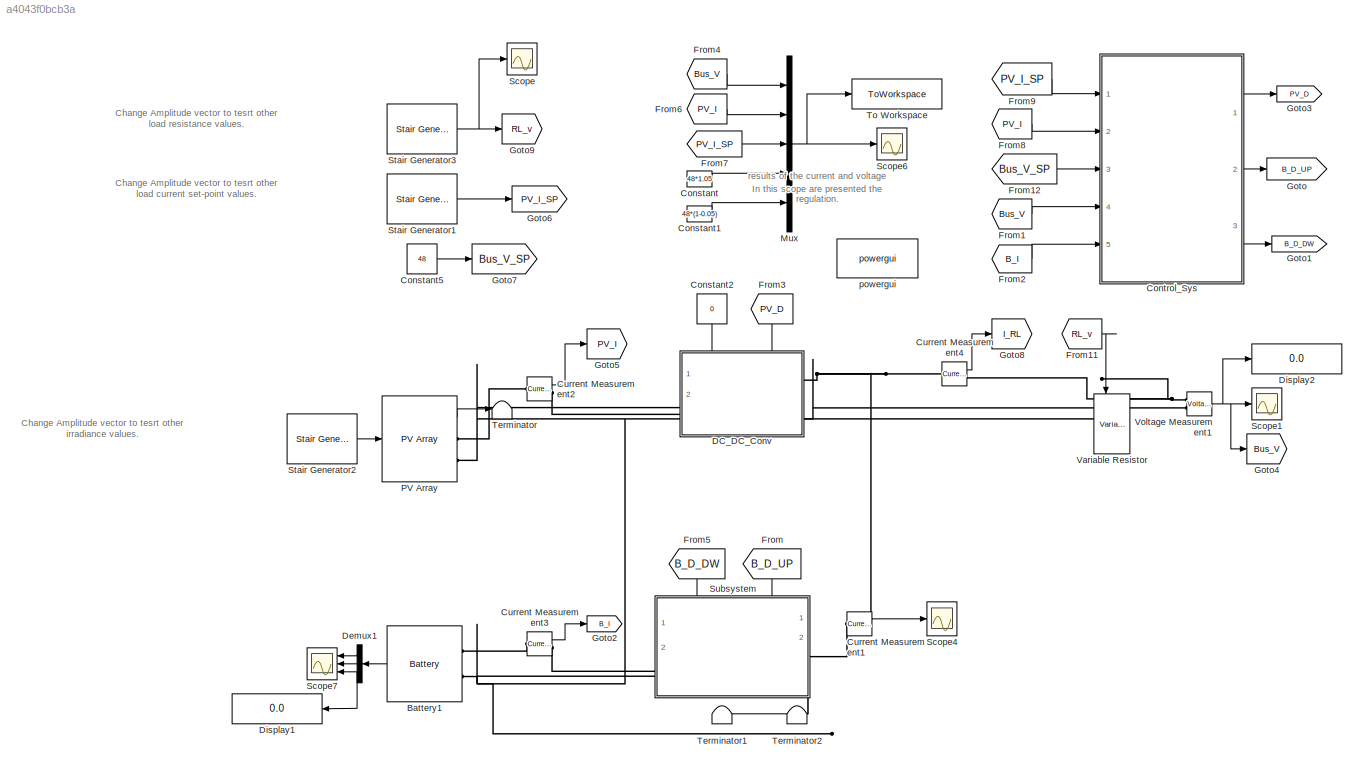
MODEL slx_a4043f0bcb3a
KIND model
CONFIG AbsTol = auto
CONFIG EnableMultiTasking = off
CONFIG FixedStep = auto
CONFIG MaxStep = auto
CONFIG MinStep = auto
CONFIG RelTol = 1e-3
CONFIG SampleTimeConstraint = Unconstrained
CONFIG Solver = VariableStepAuto
CONFIG SolverName = VariableStepAuto
CONFIG StartTime = 0.0
CONFIG StopTime = 0.08
BLOCK [Reference] Battery1  REF=electricdrivelib/Extra Sources/Battery
  Ports = [0, 1, 0, 0, 0, 2]
  SourceBlock = electricdrivelib/Extra Sources/Battery
  SourceProductBaseCode = PS
  SourceType = Battery
BLOCK [Constant] Constant
  Value = 48*1.05
BLOCK [Constant] Constant1
  Value = 48*(1-0.05)
BLOCK [Constant] Constant2
  NameLocation = left
  Value = 0
BLOCK [Constant] Constant5
  Value = 48
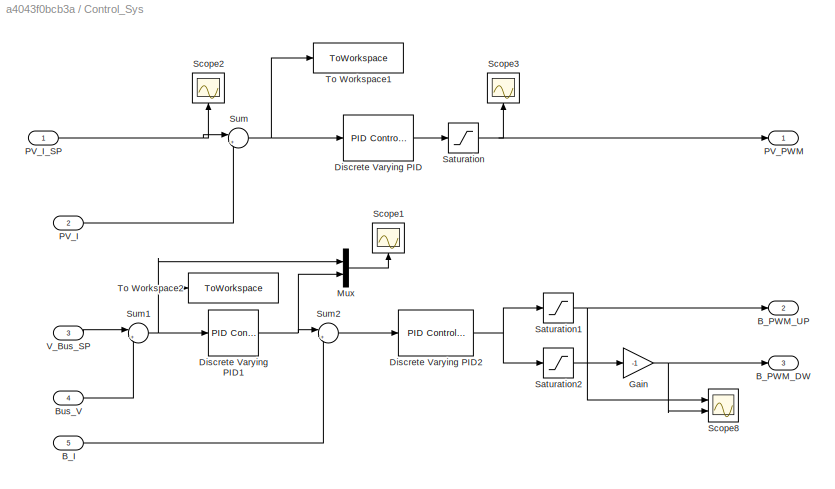
BLOCK [SubSystem] Control_Sys
  Ports = [5, 3]
  RequestExecContextInheritance = off
BLOCK [Inport] Control_Sys/B_I
  Port = 5
BLOCK [Outport] Control_Sys/B_PWM_DW
  Port = 3
BLOCK [Outport] Control_Sys/B_PWM_UP
  Port = 2
BLOCK [Inport] Control_Sys/Bus_V
  Port = 4
BLOCK [Reference] Control_Sys/Discrete Varying PID  REF=simulink/Continuous/PID Controller
  Ports = [1, 1]
  SourceBlock = simulink/Continuous/PID Controller
  SourceProductBaseCode = SL
  SourceType = PID 1dof
BLOCK [Reference] Control_Sys/Discrete Varying PID1  REF=simulink/Continuous/PID Controller
  Ports = [1, 1]
  SourceBlock = simulink/Continuous/PID Controller
  SourceProductBaseCode = SL
  SourceType = PID 1dof
BLOCK [Reference] Control_Sys/Discrete Varying PID2  REF=simulink/Continuous/PID Controller
  Ports = [1, 1]
  SourceBlock = simulink/Continuous/PID Controller
  SourceProductBaseCode = SL
  SourceType = PID 1dof
BLOCK [Gain] Control_Sys/Gain
  Gain = -1
BLOCK [Mux] Control_Sys/Mux
  DisplayOption = bar
  Inputs = 2
  Ports = [2, 1]
BLOCK [Inport] Control_Sys/PV_I
  Port = 2
BLOCK [Inport] Control_Sys/PV_I_SP
BLOCK [Outport] Control_Sys/PV_PWM
BLOCK [Saturate] Control_Sys/Saturation
  LowerLimit = 0
  UpperLimit = 1
BLOCK [Saturate] Control_Sys/Saturation1
  LowerLimit = 0
  UpperLimit = 0.99
BLOCK [Saturate] Control_Sys/Saturation2
  LowerLimit = -0.99
  UpperLimit = 0
BLOCK [Scope] Control_Sys/Scope1
  Floating = off
  NameLocation = right
  NumInputPorts = 1
  Ports = [1]
  ScopeSpecificationString = Simulink.scopes.TimeScopeBlockCfg('CurrentConfiguration', extmgr.ConfigurationSet(extmgr.Configuration('Core','General UI',true),extmgr.Configuration('Core','Source UI',true),extmgr.Configuration('Sources','WiredSimulink',true,'DataLoggingVariableName','ScopeData2'),extmgr.Configuration('Visuals','Time Domain',true,'SerializedDisplays',{struct('MinYLimReal','-2479.34849','MaxYLimReal','22069.94167...<+1484ch>
BLOCK [Scope] Control_Sys/Scope2
  Floating = off
  NameLocation = right
  NumInputPorts = 1
  Ports = [1]
  ScopeSpecificationString = Simulink.scopes.TimeScopeBlockCfg('CurrentConfiguration', extmgr.ConfigurationSet(extmgr.Configuration('Core','General UI',true),extmgr.Configuration('Core','Source UI',true),extmgr.Configuration('Sources','WiredSimulink',true,'DataLoggingVariableName','ScopeData4'),extmgr.Configuration('Visuals','Time Domain',true,'SerializedDisplays',{struct('MinYLimReal','-8.2775','MaxYLimReal','74.4975','YLabe...<+1391ch>
BLOCK [Scope] Control_Sys/Scope3
  Floating = off
  NameLocation = right
  NumInputPorts = 1
  Ports = [1]
  ScopeSpecificationString = Simulink.scopes.TimeScopeBlockCfg('CurrentConfiguration', extmgr.ConfigurationSet(extmgr.Configuration('Core','General UI',true),extmgr.Configuration('Core','Source UI',true),extmgr.Configuration('Sources','WiredSimulink',true,'DataLoggingVariableName','ScopeData2'),extmgr.Configuration('Visuals','Time Domain',true,'SerializedDisplays',{struct('MinYLimReal','-0.125','MaxYLimReal','1.125','YLabelRe...<+1384ch>
BLOCK [Scope] Control_Sys/Scope8
  Floating = off
  NumInputPorts = 2
  Ports = [2]
  ScopeSpecificationString = Simulink.scopes.TimeScopeBlockCfg('CurrentConfiguration', extmgr.ConfigurationSet(extmgr.Configuration('Core','General UI',true),extmgr.Configuration('Core','Source UI',true),extmgr.Configuration('Sources','WiredSimulink',true,'DataLoggingVariableName','ScopeData8'),extmgr.Configuration('Visuals','Time Domain',true,'SerializedDisplays',{struct('MinYLimReal','-0.12375','MaxYLimReal','1.11375','YLab...<+2052ch>
BLOCK [Sum] Control_Sys/Sum
  Inputs = |+-
  Ports = [2, 1]
BLOCK [Sum] Control_Sys/Sum1
  Inputs = |+-
  Ports = [2, 1]
BLOCK [Sum] Control_Sys/Sum2
  Inputs = |+-
  Ports = [2, 1]
BLOCK [ToWorkspace] Control_Sys/To Workspace1
  FixptAsFi = on
  MaxDataPoints = inf
  Ports = [1]
  SampleTime = -1
  SaveFormat = Timeseries
  VariableName = e_Ipva
BLOCK [ToWorkspace] Control_Sys/To Workspace2
  FixptAsFi = on
  MaxDataPoints = inf
  Ports = [1]
  SampleTime = -1
  SaveFormat = Timeseries
  VariableName = e_Vbusa
BLOCK [Inport] Control_Sys/V_Bus_SP
  Port = 3
BLOCK [Reference] Current Measurement1  REF=powerlib/Measurements/Current Measurement
  Ports = [0, 1, 0, 0, 0, 1, 1]
  SourceBlock = powerlib/Measurements/Current Measurement
  SourceProductBaseCode = PS
  SourceType = Current Measurement
  UserDataPersistent = on
BLOCK [Reference] Current Measurement2  REF=powerlib/Measurements/Current Measurement
  Ports = [0, 1, 0, 0, 0, 1, 1]
  SourceBlock = powerlib/Measurements/Current Measurement
  SourceProductBaseCode = PS
  SourceType = Current Measurement
  UserDataPersistent = on
BLOCK [Reference] Current Measurement3  REF=powerlib/Measurements/Current Measurement
  Ports = [0, 1, 0, 0, 0, 1, 1]
  SourceBlock = powerlib/Measurements/Current Measurement
  SourceProductBaseCode = PS
  SourceType = Current Measurement
  UserDataPersistent = on
BLOCK [Reference] Current Measurement4  REF=powerlib/Measurements/Current Measurement
  Ports = [0, 1, 0, 0, 0, 1, 1]
  SourceBlock = powerlib/Measurements/Current Measurement
  SourceProductBaseCode = PS
  SourceType = Current Measurement
  UserDataPersistent = on
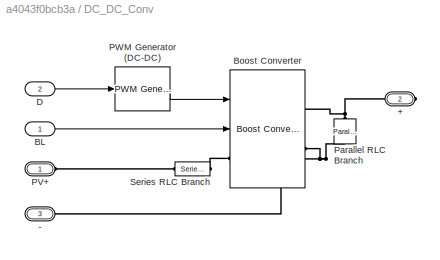
BLOCK [SubSystem] DC_DC_Conv
  PortSchema = {"entries":[{"content":{"sides":[{"content":{"connectorIds":["LConn1"]},"type":"ConnectorPlacement.EquallySpacedRectSide","uuid":"00f7090b-60ae-413e-b809-f771630d6751"},{"content":{"connectorIds":["RConn1","RConn2"],"side":"RIGHT"},"type":"ConnectorPlacement.EquallySpacedRectSide","uuid":"f0025ab7-a9d8-466a-8e23-704d013948c1"},{"content":{"connectorIds":["In1","In2"],"side":"TOP"},"type":"Connecto...<+267ch>
  Ports = [2, 0, 0, 0, 0, 1, 2]
  RequestExecContextInheritance = off
BLOCK [PMIOPort] DC_DC_Conv/+
  NameLocation = top
  Port = 2
  Side = Right
BLOCK [PMIOPort] DC_DC_Conv/-
  NameLocation = top
  Port = 3
  Side = Right
BLOCK [Inport] DC_DC_Conv/BL
BLOCK [Reference] DC_DC_Conv/Boost Converter  REF=powerlib/Power
Electronics/Boost Converter
  Ports = [2, 0, 0, 0, 0, 1, 2]
  SourceBlock = powerlib/Power\nElectronics/Boost Converter
  SourceProductBaseCode = PS
  SourceType = Boost Converter
BLOCK [Inport] DC_DC_Conv/D
  Port = 2
BLOCK [PMIOPort] DC_DC_Conv/PV+
  Side = Left
BLOCK [Reference] DC_DC_Conv/PWM Generator (DC-DC)  REF=powerlib_meascontrol/Pulse & Signal
Generators/PWM Generator
(DC-DC)
  Ports = [1, 1]
  SourceBlock = powerlib_meascontrol/Pulse & Signal\nGenerators/PWM Generator\n(DC-DC)
  SourceProductBaseCode = PS
  SourceType = PWM Generator (DC-DC)
BLOCK [Reference] DC_DC_Conv/Parallel RLC Branch  REF=powerlib/Elements/Parallel RLC Branch
  AttributesFormatString = \n
  NameLocation = left
  Ports = [0, 0, 0, 0, 0, 1, 1]
  SourceBlock = powerlib/Elements/Parallel RLC Branch
  SourceProductBaseCode = PS
  SourceType = Parallel RLC Branch
BLOCK [Reference] DC_DC_Conv/Series RLC Branch  REF=powerlib/Elements/Series RLC Branch
  Ports = [0, 0, 0, 0, 0, 1, 1]
  SourceBlock = powerlib/Elements/Series RLC Branch
  SourceProductBaseCode = PS
  SourceType = Series RLC Branch
BLOCK [Demux] Demux1
  NameLocation = top
  Outputs = 3
  Ports = [1, 3]
BLOCK [Display] Display1
  Decimation = 1
  NameLocation = top
  Ports = [1]
BLOCK [Display] Display2
  Decimation = 1
  Ports = [1]
BLOCK [From] From
  GotoTag = B_D_UP
  NameLocation = left
BLOCK [From] From1
  GotoTag = Bus_V
BLOCK [From] From11
  GotoTag = RL_v
BLOCK [From] From12
  GotoTag = Bus_V_SP
BLOCK [From] From2
  GotoTag = B_I
BLOCK [From] From3
  GotoTag = PV_D
  NameLocation = left
BLOCK [From] From4
  GotoTag = Bus_V
BLOCK [From] From5
  GotoTag = B_D_DW
  NameLocation = left
BLOCK [From] From6
  GotoTag = PV_I
BLOCK [From] From7
  GotoTag = PV_I_SP
BLOCK [From] From8
  GotoTag = PV_I
BLOCK [From] From9
  GotoTag = PV_I_SP
BLOCK [Goto] Goto
  GotoTag = B_D_UP
BLOCK [Goto] Goto1
  GotoTag = B_D_DW
BLOCK [Goto] Goto2
  GotoTag = B_I
BLOCK [Goto] Goto3
  GotoTag = PV_D
BLOCK [Goto] Goto4
  GotoTag = Bus_V
BLOCK [Goto] Goto5
  GotoTag = PV_I
BLOCK [Goto] Goto6
  GotoTag = PV_I_SP
BLOCK [Goto] Goto7
  GotoTag = Bus_V_SP
BLOCK [Goto] Goto8
  GotoTag = I_RL
BLOCK [Goto] Goto9
  GotoTag = RL_v
BLOCK [Mux] Mux
  DisplayOption = bar
  Inputs = 5
  Ports = [5, 1]
BLOCK [Reference] PV Array  REF=re_lib/Solar/PV Array
  Ports = [1, 1, 0, 0, 0, 0, 2]
  SourceBlock = re_lib/Solar/PV Array
  SourceProductBaseCode = PS
  SourceType = PV array
BLOCK [Scope] Scope
  Floating = off
  NumInputPorts = 1
  Ports = [1]
  ScopeSpecificationString = Simulink.scopes.TimeScopeBlockCfg('CurrentConfiguration', extmgr.ConfigurationSet(extmgr.Configuration('Core','General UI',true),extmgr.Configuration('Core','Source UI',true),extmgr.Configuration('Sources','WiredSimulink',true,'DataLoggingVariableName','ScopeData1'),extmgr.Configuration('Visuals','Time Domain',true,'SerializedDisplays',{struct('MinYLimReal','10.00000','MaxYLimReal','30.00000','YLa...<+1409ch>
BLOCK [Scope] Scope1
  Floating = off
  NumInputPorts = 1
  Ports = [1]
  ScopeSpecificationString = Simulink.scopes.TimeScopeBlockCfg('CurrentConfiguration', extmgr.ConfigurationSet(extmgr.Configuration('Core','General UI',true),extmgr.Configuration('Core','Source UI',true),extmgr.Configuration('Sources','WiredSimulink',true,'DataLoggingVariableName','ScopeData2'),extmgr.Configuration('Visuals','Time Domain',true,'SerializedDisplays',{struct('MinYLimReal','-10.82924','MaxYLimReal','97.50277','YL...<+1456ch>
BLOCK [Scope] Scope4
  Floating = off
  NumInputPorts = 1
  Ports = [1]
  ScopeSpecificationString = Simulink.scopes.TimeScopeBlockCfg('CurrentConfiguration', extmgr.ConfigurationSet(extmgr.Configuration('Core','General UI',true),extmgr.Configuration('Core','Source UI',true),extmgr.Configuration('Sources','WiredSimulink',true,'DataLoggingVariableName','ScopeData3'),extmgr.Configuration('Visuals','Time Domain',true,'SerializedDisplays',{struct('MinYLimReal','-63.7768','MaxYLimReal','34.55096','YLa...<+1502ch>
BLOCK [Scope] Scope6
  Floating = off
  NumInputPorts = 1
  Ports = [1]
  ScopeSpecificationString = Simulink.scopes.TimeScopeBlockCfg('CurrentConfiguration', extmgr.ConfigurationSet(extmgr.Configuration('Core','General UI',true,'FigureColor',[1 1 1]),extmgr.Configuration('Core','Source UI',true),extmgr.Configuration('Sources','WiredSimulink',true,'DataLoggingVariableName','ScopeData4'),extmgr.Configuration('Visuals','Time Domain',true,'SerializedDisplays',{struct('MinYLimReal','-10.7226','MaxYLi...<+2368ch>
BLOCK [Scope] Scope7
  Floating = off
  NameLocation = top
  NumInputPorts = 3
  Ports = [3]
  ScopeSpecificationString = Simulink.scopes.TimeScopeBlockCfg('CurrentConfiguration', extmgr.ConfigurationSet(extmgr.Configuration('Core','General UI',true),extmgr.Configuration('Core','Source UI',true),extmgr.Configuration('Sources','WiredSimulink',true,'DataLoggingVariableName','ScopeData5'),extmgr.Configuration('Visuals','Time Domain',true,'SerializedDisplays',{struct('MinYLimReal','59.999996','MaxYLimReal','60.000028','Y...<+2732ch>
BLOCK [Reference] Stair Generator1  REF=eeStairGenerator/Stair Generator
  Ports = [0, 1]
  SourceBlock = eeStairGenerator/Stair Generator
  SourceProductBaseCode = PS
  SourceType = Stair Generator
BLOCK [Reference] Stair Generator2  REF=eeStairGenerator/Stair Generator
  Ports = [0, 1]
  SourceBlock = eeStairGenerator/Stair Generator
  SourceProductBaseCode = PS
  SourceType = Stair Generator
BLOCK [Reference] Stair Generator3  REF=eeStairGenerator/Stair Generator
  Ports = [0, 1]
  SourceBlock = eeStairGenerator/Stair Generator
  SourceProductBaseCode = PS
  SourceType = Stair Generator
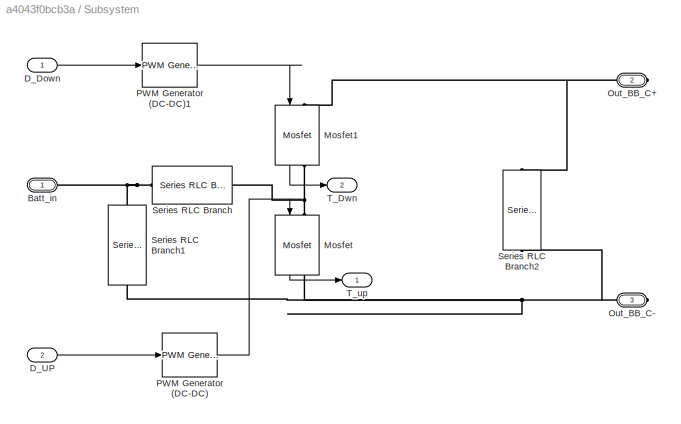
BLOCK [SubSystem] Subsystem
  PortSchema = {"entries":[{"content":{"sides":[{"content":{"connectorIds":["LConn1"]},"type":"ConnectorPlacement.EquallySpacedRectSide","uuid":"a9530ab3-8980-4dba-8483-d408c1c24a59"},{"content":{"connectorIds":["RConn1","RConn2"],"side":"RIGHT"},"type":"ConnectorPlacement.EquallySpacedRectSide","uuid":"f691113d-6eb3-43ec-a6a4-3d8fb6884df6"},{"content":{"connectorIds":["In1","In2"],"side":"TOP"},"type":"Connecto...<+424ch>
  Ports = [2, 2, 0, 0, 0, 1, 2]
  RequestExecContextInheritance = off
BLOCK [PMIOPort] Subsystem/Batt_in
  Side = Left
BLOCK [Inport] Subsystem/D_Down
BLOCK [Inport] Subsystem/D_UP
  Port = 2
BLOCK [Reference] Subsystem/Mosfet  REF=powerlib/Power
Electronics/Mosfet
  NameLocation = left
  Ports = [1, 1, 0, 0, 0, 1, 1]
  SourceBlock = powerlib/Power\nElectronics/Mosfet
  SourceProductBaseCode = PS
  SourceType = Mosfet
BLOCK [Reference] Subsystem/Mosfet1  REF=powerlib/Power
Electronics/Mosfet
  NameLocation = left
  Ports = [1, 1, 0, 0, 0, 1, 1]
  SourceBlock = powerlib/Power\nElectronics/Mosfet
  SourceProductBaseCode = PS
  SourceType = Mosfet
BLOCK [PMIOPort] Subsystem/Out_BB_C+
  Port = 2
  Side = Right
BLOCK [PMIOPort] Subsystem/Out_BB_C-
  Port = 3
  Side = Right
BLOCK [Reference] Subsystem/PWM Generator (DC-DC)  REF=powerlib_meascontrol/Pulse & Signal
Generators/PWM Generator
(DC-DC)
  Ports = [1, 1]
  SourceBlock = powerlib_meascontrol/Pulse & Signal\nGenerators/PWM Generator\n(DC-DC)
  SourceProductBaseCode = PS
  SourceType = PWM Generator (DC-DC)
BLOCK [Reference] Subsystem/PWM Generator (DC-DC)1  REF=powerlib_meascontrol/Pulse & Signal
Generators/PWM Generator
(DC-DC)
  Ports = [1, 1]
  SourceBlock = powerlib_meascontrol/Pulse & Signal\nGenerators/PWM Generator\n(DC-DC)
  SourceProductBaseCode = PS
  SourceType = PWM Generator (DC-DC)
BLOCK [Reference] Subsystem/Series RLC Branch  REF=powerlib/Elements/Series RLC Branch
  Ports = [0, 0, 0, 0, 0, 1, 1]
  SourceBlock = powerlib/Elements/Series RLC Branch
  SourceProductBaseCode = PS
  SourceType = Series RLC Branch
BLOCK [Reference] Subsystem/Series RLC Branch1  REF=powerlib/Elements/Series RLC Branch
  NameLocation = left
  Ports = [0, 0, 0, 0, 0, 1, 1]
  SourceBlock = powerlib/Elements/Series RLC Branch
  SourceProductBaseCode = PS
  SourceType = Series RLC Branch
BLOCK [Reference] Subsystem/Series RLC Branch2  REF=powerlib/Elements/Series RLC Branch
  NameLocation = left
  Ports = [0, 0, 0, 0, 0, 1, 1]
  SourceBlock = powerlib/Elements/Series RLC Branch
  SourceProductBaseCode = PS
  SourceType = Series RLC Branch
BLOCK [Outport] Subsystem/T_Dwn
  NameLocation = top
  Port = 2
BLOCK [Outport] Subsystem/T_up
BLOCK [Terminator] Terminator
BLOCK [Terminator] Terminator1
BLOCK [Terminator] Terminator2
BLOCK [ToWorkspace] To Workspace
  FixptAsFi = on
  MaxDataPoints = inf
  Ports = [1]
  SampleTime = -1
  SaveFormat = Timeseries
  VariableName = graph
BLOCK [Reference] Variable Resistor  REF=powerlib/Elements/Variable Resistor
  NameLocation = left
  Ports = [1, 0, 0, 0, 0, 1, 1]
  SourceBlock = powerlib/Elements/Variable Resistor
  SourceProductBaseCode = PS
  SourceType = Variable Resistor
BLOCK [Reference] Voltage Measurement1  REF=powerlib/Measurements/Voltage Measurement
  Ports = [0, 1, 0, 0, 0, 2]
  SourceBlock = powerlib/Measurements/Voltage Measurement
  SourceProductBaseCode = PS
  SourceType = Voltage Measurement
  UserDataPersistent = on
BLOCK [Reference] powergui  REF=powerlib/powergui
  Ports = []
  Priority = 1
  SourceBlock = powerlib/powergui
  SourceProductBaseCode = PS
  SourceType = PSB option menu block
ANNOTATION (root): In this scope are presented the results of the current and voltage regulation.
ANNOTATION (root): Change Amplitude vector to tesrt other irradiance values.
ANNOTATION (root): Change Amplitude vector to tesrt other load current set-point values.
ANNOTATION (root): Change Amplitude vector to tesrt other load resistance values.
LINE Battery1:1 -> Demux1:1
LINE Constant1:1 -> Mux:5
LINE Constant2:1 -> DC_DC_Conv:1
LINE Constant5:1 -> Goto7:1
LINE Constant:1 -> Mux:4
LINE Control_Sys/B_I:1 -> Control_Sys/Sum2:2
LINE Control_Sys/Bus_V:1 -> Control_Sys/Sum1:2
NET Control_Sys/Discrete Varying PID1:1 -> Control_Sys/Mux:2, Control_Sys/Sum2:1
NET Control_Sys/Discrete Varying PID2:1 -> Control_Sys/Saturation1:1, Control_Sys/Saturation2:1
LINE Control_Sys/Discrete Varying PID:1 -> Control_Sys/Saturation:1
NET Control_Sys/Gain:1 -> Control_Sys/B_PWM_DW:1, Control_Sys/Scope8:2
LINE Control_Sys/Mux:1 -> Control_Sys/Scope1:1
LINE Control_Sys/PV_I:1 -> Control_Sys/Sum:2
NET Control_Sys/PV_I_SP:1 -> Control_Sys/Scope2:1, Control_Sys/Sum:1
NET Control_Sys/Saturation1:1 -> Control_Sys/B_PWM_UP:1, Control_Sys/Scope8:1
LINE Control_Sys/Saturation2:1 -> Control_Sys/Gain:1
NET Control_Sys/Saturation:1 -> Control_Sys/PV_PWM:1, Control_Sys/Scope3:1
NET Control_Sys/Sum1:1 -> Control_Sys/Discrete Varying PID1:1, Control_Sys/Mux:1, Control_Sys/To Workspace2:1
LINE Control_Sys/Sum2:1 -> Control_Sys/Discrete Varying PID2:1
NET Control_Sys/Sum:1 -> Control_Sys/Discrete Varying PID:1, Control_Sys/To Workspace1:1
LINE Control_Sys/V_Bus_SP:1 -> Control_Sys/Sum1:1
LINE Control_Sys:1 -> Goto3:1
LINE Control_Sys:2 -> Goto:1
LINE Control_Sys:3 -> Goto1:1
LINE Current Measurement1:1 -> Scope4:1
LINE Current Measurement2:1 -> Goto5:1
LINE Current Measurement3:1 -> Goto2:1
LINE Current Measurement4:1 -> Goto8:1
LINE DC_DC_Conv/BL:1 -> DC_DC_Conv/Boost Converter:2
LINE DC_DC_Conv/D:1 -> DC_DC_Conv/PWM Generator (DC-DC):1
LINE DC_DC_Conv/PWM Generator (DC-DC):1 -> DC_DC_Conv/Boost Converter:1
LINE Demux1:1 -> Scope7:1
LINE Demux1:2 -> Scope7:2
NET Demux1:3 -> Display1:1, Scope7:3
LINE From11:1 -> Variable Resistor:1
LINE From12:1 -> Control_Sys:3
LINE From1:1 -> Control_Sys:4
LINE From2:1 -> Control_Sys:5
LINE From3:1 -> DC_DC_Conv:2
LINE From4:1 -> Mux:1
LINE From5:1 -> Subsystem:1
LINE From6:1 -> Mux:2
LINE From7:1 -> Mux:3
LINE From8:1 -> Control_Sys:2
LINE From9:1 -> Control_Sys:1
LINE From:1 -> Subsystem:2
NET Mux:1 -> Scope6:1, To Workspace:1
LINE PV Array:1 -> Terminator:1
LINE Stair Generator1:1 -> Goto6:1
LINE Stair Generator2:1 -> PV Array:1
NET Stair Generator3:1 -> Goto9:1, Scope:1
LINE Subsystem/D_Down:1 -> Subsystem/PWM Generator (DC-DC)1:1
LINE Subsystem/D_UP:1 -> Subsystem/PWM Generator (DC-DC):1
LINE Subsystem/Mosfet1:1 -> Subsystem/T_Dwn:1
LINE Subsystem/Mosfet:1 -> Subsystem/T_up:1
LINE Subsystem/PWM Generator (DC-DC)1:1 -> Subsystem/Mosfet1:1
LINE Subsystem/PWM Generator (DC-DC):1 -> Subsystem/Mosfet:1
LINE Subsystem:1 -> Terminator1:1
LINE Subsystem:2 -> Terminator2:1
NET Voltage Measurement1:1 -> Display2:1, Goto4:1, Scope1:1
PLINE Battery1:LConn1 -- Current Measurement3:LConn1
PNET net1: Battery1:LConn2 -- DC_DC_Conv:RConn2 -- PV Array:RConn2 -- Subsystem:RConn2 -- Variable Resistor:RConn1 -- Voltage Measurement1:LConn2
PLINE Current Measurement1:LConn1 -- Subsystem:RConn1
PNET net2: Current Measurement1:RConn1 -- Current Measurement4:LConn1 -- DC_DC_Conv:RConn1
PLINE Current Measurement2:LConn1 -- PV Array:RConn1
PLINE Current Measurement2:RConn1 -- DC_DC_Conv:LConn1
PLINE Current Measurement3:RConn1 -- Subsystem:LConn1
PNET net3: Current Measurement4:RConn1 -- Variable Resistor:LConn1 -- Voltage Measurement1:LConn1
PNET net4: DC_DC_Conv/+:RConn1 -- DC_DC_Conv/Boost Converter:RConn1 -- DC_DC_Conv/Parallel RLC Branch:LConn1
PNET net5: DC_DC_Conv/-:RConn1 -- DC_DC_Conv/Boost Converter:RConn2 -- DC_DC_Conv/Parallel RLC Branch:RConn1
PLINE DC_DC_Conv/Boost Converter:LConn1 -- DC_DC_Conv/Series RLC Branch:RConn1
PLINE DC_DC_Conv/PV+:RConn1 -- DC_DC_Conv/Series RLC Branch:LConn1
PNET net6: Subsystem/Batt_in:RConn1 -- Subsystem/Series RLC Branch1:LConn1 -- Subsystem/Series RLC Branch:LConn1
PNET net7: Subsystem/Mosfet1:LConn1 -- Subsystem/Out_BB_C+:RConn1 -- Subsystem/Series RLC Branch2:LConn1
PNET net8: Subsystem/Mosfet1:RConn1 -- Subsystem/Mosfet:LConn1 -- Subsystem/Series RLC Branch:RConn1
PNET net9: Subsystem/Mosfet:RConn1 -- Subsystem/Out_BB_C-:RConn1 -- Subsystem/Series RLC Branch1:RConn1 -- Subsystem/Series RLC Branch2:RConn1
note: NET lines group one-source signal fan-out (src -> all destinations, sorted); 1:1 wires keep LINE; PNET lines group multi-terminal physical nets as a canonical sorted terminal list (undirected conserving connections); 2-terminal nets keep the pairwise PLINE form
